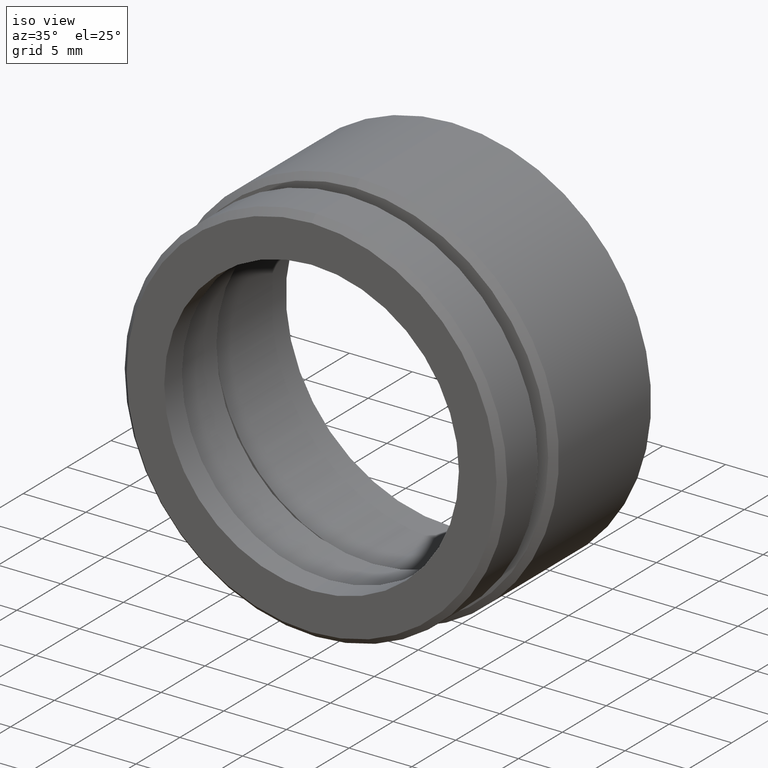
[diagram: clean part render]
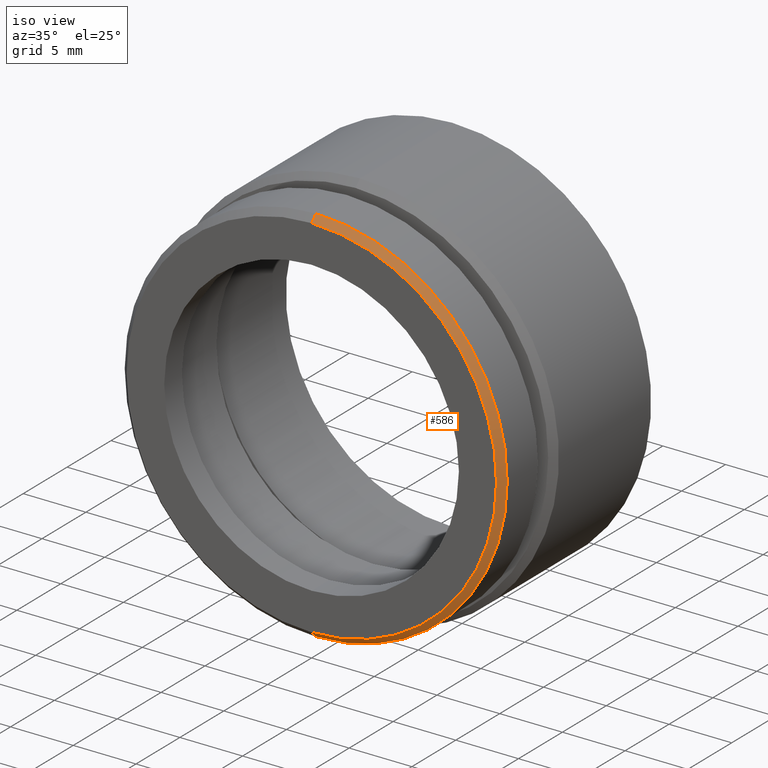
[diagram: same view with one face highlighted and labeled with its STEP entity id]
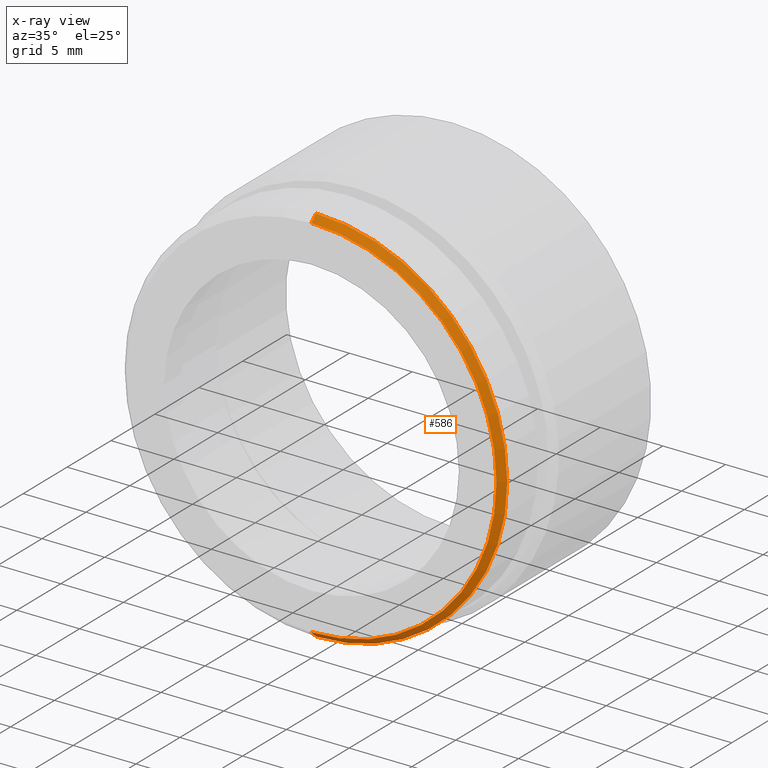
[diagram: x-ray of the same camera — body ghosted, the highlighted face saturated]
A machine part, iso view. The second image highlights one B-rep face of the part: STEP entity #586.
The next image is the same camera in x-ray: the body ghosted, the highlighted face saturated — about 0% of this face is hidden behind the body in this view.
In plain terms, the highlighted conical surface has half-angle 45 deg.
Its self-contained STEP definition (entity closure, byte-faithful):
#12 = CARTESIAN_POINT ( 'NONE',  ( 1.836970198721030400E-015, 0.0000000000000000000, -14.75000000000000500 ) ) ;
#19 = CARTESIAN_POINT ( 'NONE',  ( 0.0000000000000000000, 0.4999999999999987200, 0.0000000000000000000 ) ) ;
#24 = DIRECTION ( 'NONE',  ( -0.0000000000000000000, -1.000000000000000000, -0.0000000000000000000 ) ) ;
#39 = EDGE_CURVE ( 'NONE', #509, #318, #248, .T. ) ;
#41 = VERTEX_POINT ( 'NONE', #384 ) ;
#64 = DIRECTION ( 'NONE',  ( 0.0000000000000000000, 1.000000000000000000, 0.0000000000000000000 ) ) ;
#68 = DIRECTION ( 'NONE',  ( 0.0000000000000000000, 1.000000000000000000, 0.0000000000000000000 ) ) ;
#102 = DIRECTION ( 'NONE',  ( 0.0000000000000000000, 0.0000000000000000000, -1.000000000000000000 ) ) ;
#120 = CARTESIAN_POINT ( 'NONE',  ( 1.806354028742346600E-015, 0.0000000000000000000, -14.75000000000000500 ) ) ;
#130 = AXIS2_PLACEMENT_3D ( 'NONE', #261, #24, #722 ) ;
#149 = EDGE_LOOP ( 'NONE', ( #362, #474, #256, #483 ) ) ;
#211 = CARTESIAN_POINT ( 'NONE',  ( 0.0000000000000000000, 0.4999999999999987200, -15.25000000000000000 ) ) ;
#228 = FACE_OUTER_BOUND ( 'NONE', #149, .T. ) ;
#248 = LINE ( 'NONE', #120, #430 ) ;
#256 = ORIENTED_EDGE ( 'NONE', *, *, #845, .F. ) ;
#261 = CARTESIAN_POINT ( 'NONE',  ( 0.0000000000000000000, 0.0000000000000000000, 0.0000000000000000000 ) ) ;
#318 = VERTEX_POINT ( 'NONE', #211 ) ;
#351 = CIRCLE ( 'NONE', #130, 14.75000000000000500 ) ;
#362 = ORIENTED_EDGE ( 'NONE', *, *, #610, .F. ) ;
#384 = CARTESIAN_POINT ( 'NONE',  ( 1.867586368699713800E-015, 0.4999999999999987200, 15.25000000000000000 ) ) ;
#418 = VERTEX_POINT ( 'NONE', #707 ) ;
#430 = VECTOR ( 'NONE', #642, 1000.000000000000000 ) ;
#461 = EDGE_CURVE ( 'NONE', #418, #41, #734, .T. ) ;
#474 = ORIENTED_EDGE ( 'NONE', *, *, #39, .T. ) ;
#476 = VECTOR ( 'NONE', #752, 1000.000000000000000 ) ;
#483 = ORIENTED_EDGE ( 'NONE', *, *, #461, .F. ) ;
#509 = VERTEX_POINT ( 'NONE', #12 ) ;
#586 = ADVANCED_FACE ( 'NONE', ( #228 ), #874, .T. ) ;
#610 = EDGE_CURVE ( 'NONE', #509, #418, #351, .T. ) ;
#642 = DIRECTION ( 'NONE',  ( 8.659560562354889700E-017, 0.7071067811865512400, -0.7071067811865439100 ) ) ;
#673 = CARTESIAN_POINT ( 'NONE',  ( 0.0000000000000000000, 0.0000000000000000000, 0.0000000000000000000 ) ) ;
#686 = CARTESIAN_POINT ( 'NONE',  ( 0.0000000000000000000, 0.0000000000000000000, 14.75000000000000500 ) ) ;
#698 = AXIS2_PLACEMENT_3D ( 'NONE', #673, #68, #701 ) ;
#701 = DIRECTION ( 'NONE',  ( 0.0000000000000000000, 0.0000000000000000000, 1.000000000000000000 ) ) ;
#707 = CARTESIAN_POINT ( 'NONE',  ( 0.0000000000000000000, 0.0000000000000000000, 14.75000000000000500 ) ) ;
#722 = DIRECTION ( 'NONE',  ( 0.0000000000000000000, 0.0000000000000000000, -1.000000000000000000 ) ) ;
#734 = LINE ( 'NONE', #686, #476 ) ;
#752 = DIRECTION ( 'NONE',  ( 0.0000000000000000000, 0.7071067811865512400, 0.7071067811865439100 ) ) ;
#815 = AXIS2_PLACEMENT_3D ( 'NONE', #19, #64, #102 ) ;
#842 = CIRCLE ( 'NONE', #815, 15.25000000000000000 ) ;
#845 = EDGE_CURVE ( 'NONE', #41, #318, #842, .T. ) ;
#874 = CONICAL_SURFACE ( 'NONE', #698, 14.75000000000000500, 0.7853981633974431700 ) ;